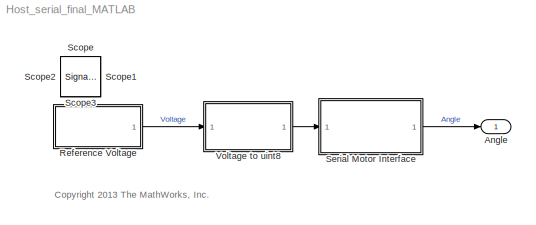
MODEL Host_serial_final_MATLAB
KIND model
CONFIG InitFcn = tstop = str2num(get_param(bdroot,'StopTime'));
CONFIG StopFcn = instrreset
BLOCK [Outport] Angle
  IconDisplay = Port number
  SID = 48
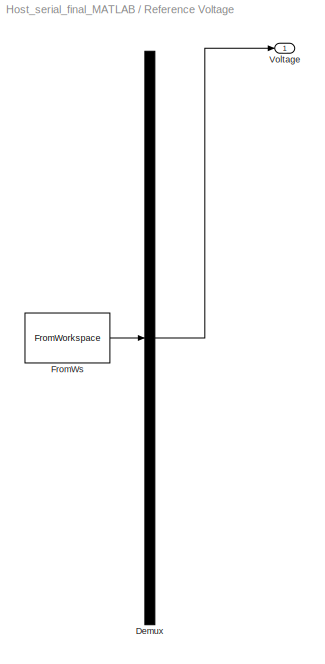
BLOCK [SubSystem] Reference Voltage
  ClipboardFcn = sigbuilder_block('clipboard');
  CloseFcn = sigbuilder_block('close');
  ContinueFcn = sigbuilder_block('continue')
  CopyFcn = sigbuilder_block('copy');
  DeleteFcn = sigbuilder_block('delete');
  FunctionWithSeparateData = off
  LoadFcn = sigbuilder_block('load',[6 4.5 466.5 247.5 ]);
  MaskHideContents = on
  MinAlgLoopOccurrences = off
  ModelCloseFcn = sigbuilder_block('modelClose');
  NameChangeFcn = sigbuilder_block('namechange');
  Opaque = off
  OpenFcn = sigbuilder_block('open',[168.75 307.5 810 456 ]);
  PauseFcn = sigbuilder_block('pause')
  Ports = [0, 1]
  PreSaveFcn = sigbuilder_block('preSave');
  PropExecContextOutsideSubsystem = off
  RTWSystemCode = Auto
  RequestExecContextInheritance = off
  SID = 36
  StartFcn = sigbuilder_block('start');
  StopFcn = sigbuilder_block('stop');
  Tag = STV Subsys
BLOCK [Demux] Reference Voltage/Demux
  Outputs = 1
  Ports = [1, 1]
  SID = 36:1
  Tag = STV Demux
BLOCK [FromWorkspace] Reference Voltage/FromWs
  SID = 36:2
  SampleTime = 1/100
  SigBuilderData = DataTag0
  Tag = STV FromWs
  VariableName = tuvar
  VnvData = DataTag1
  ZeroCross = on
BLOCK [Outport] Reference Voltage/Voltage
  IconDisplay = Port number
  SID = 36:3
  Tag = STV Outport
BLOCK [SignalViewerScope] Scope
  IOType = viewer
  MaxDataPoints = 7500
  NumInputPorts = 2
  Ports = []
  RefreshTime = 0.035000
  SID = 4
  ShowDataMarkers = off
  ShowLegends = off
  TimeRange = 10
  YMax = 3~100
  YMin = -3~-150
BLOCK [SignalViewerScope] Scope1
  IOType = viewer
  LimitDataPoints = off
  MaxDataPoints = 7500
  NumInputPorts = 2
  Ports = []
  RefreshTime = 0.035000
  SID = 49
  SaveName = ScopeData3
  ShowDataMarkers = off
  ShowLegends = on
  TimeRange = 10
  YMax = 5~125
  YMin = -5~-125
  ZoomMode = xonly
BLOCK [SignalViewerScope] Scope2
  IOType = viewer
  MaxDataPoints = 7500
  NumInputPorts = 1
  Ports = []
  RefreshTime = 0.035000
  SID = 17
  SaveName = ScopeData1
  ShowDataMarkers = off
  ShowLegends = off
BLOCK [SignalViewerScope] Scope3
  IOType = viewer
  MaxDataPoints = 7500
  NumInputPorts = 1
  Ports = []
  RefreshTime = 0.035000
  SID = 37
  SaveName = ScopeData2
  ShowDataMarkers = off
  ShowLegends = off
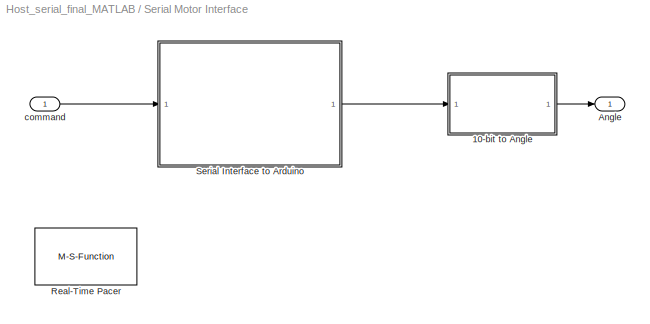
BLOCK [SubSystem] Serial Motor Interface
  FunctionWithSeparateData = off
  MaskHideContents = off
  MinAlgLoopOccurrences = off
  Opaque = off
  Ports = [1, 1]
  PropExecContextOutsideSubsystem = off
  RTWSystemCode = Auto
  RequestExecContextInheritance = off
  SID = 86
  StartFcn = openInstr = instrfind;                           \nif ~isempty(openInstr)                           \n  fclose(openInstr);                             \n  delete(openInstr);                             \nend                                              \nclear openInstr                                  \ns = serial('COM4', 'BaudRate', 9600,'Timeout',5);\nfopen(s);
  StopFcn = fclose(s);\ndelete(s);\nclear s
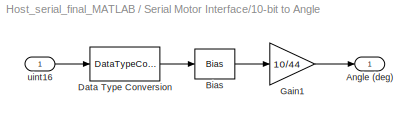
BLOCK [SubSystem] Serial Motor Interface/10-bit to Angle
  FunctionWithSeparateData = off
  MaskHideContents = off
  MinAlgLoopOccurrences = off
  Opaque = off
  Ports = [1, 1]
  PropExecContextOutsideSubsystem = off
  RTWSystemCode = Auto
  RequestExecContextInheritance = off
  SID = 88
BLOCK [Outport] Serial Motor Interface/10-bit to Angle/Angle (deg)
  IconDisplay = Port number
  SID = 93
BLOCK [Bias] Serial Motor Interface/10-bit to Angle/Bias
  Bias = -500
  SID = 90
  SaturateOnIntegerOverflow = off
BLOCK [DataTypeConversion] Serial Motor Interface/10-bit to Angle/Data Type Conversion
  OutDataTypeStr = double
  RndMeth = Floor
  SID = 91
  SaturateOnIntegerOverflow = off
BLOCK [Gain] Serial Motor Interface/10-bit to Angle/Gain1
  Gain = 10/44
  OutDataTypeStr = Inherit: Inherit via internal rule
  ParamDataTypeStr = Inherit: Inherit via internal rule
  SID = 92
  SaturateOnIntegerOverflow = off
BLOCK [Inport] Serial Motor Interface/10-bit to Angle/uint16
  IconDisplay = Port number
  SID = 89
BLOCK [Outport] Serial Motor Interface/Angle
  IconDisplay = Port number
  SID = 96
BLOCK [M-S-Function] Serial Motor Interface/Real-Time Pacer
  FunctionName = msfun_realtime_pacer
  Parameters = simTimePerRealTime
  Ports = []
  SID = 94
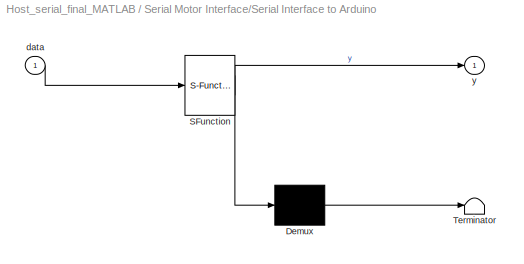
BLOCK [SubSystem] Serial Motor Interface/Serial Interface to Arduino
  ErrorFcn = Stateflow.Translate.translate
  FunctionWithSeparateData = off
  MaskHideContents = off
  MinAlgLoopOccurrences = off
  Opaque = off
  PermitHierarchicalResolution = ExplicitOnly
  Ports = [1, 1]
  PropExecContextOutsideSubsystem = off
  RTWSystemCode = Auto
  RequestExecContextInheritance = off
  SFBlockType = MATLAB Function
  SID = 95
  SystemSampleTime = 1/100
  TreatAsAtomicUnit = on
BLOCK [Demux] Serial Motor Interface/Serial Interface to Arduino/ Demux 
  Outputs = 1
  Ports = [1, 1]
  SID = 95::40
BLOCK [S-Function] Serial Motor Interface/Serial Interface to Arduino/ SFunction 
  EnableBusSupport = off
  FunctionName = sf_sfun
  PortCounts = [1 2]
  Ports = [1, 2]
  SID = 95::39
  Tag = Stateflow S-Function Host_serial_final_MATLAB 2
BLOCK [Terminator] Serial Motor Interface/Serial Interface to Arduino/ Terminator 
  SID = 95::41
BLOCK [Inport] Serial Motor Interface/Serial Interface to Arduino/data
  IconDisplay = Port number
  SID = 95::1
BLOCK [Outport] Serial Motor Interface/Serial Interface to Arduino/y
  IconDisplay = Port number
  SID = 95::5
BLOCK [Inport] Serial Motor Interface/command
  IconDisplay = Port number
  OutDataTypeStr = uint8
  SID = 87
  SampleTime = 0.01
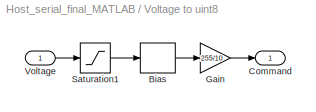
BLOCK [SubSystem] Voltage to uint8
  FunctionWithSeparateData = off
  MaskHideContents = off
  MinAlgLoopOccurrences = off
  Opaque = off
  Ports = [1, 1]
  PropExecContextOutsideSubsystem = off
  RTWSystemCode = Auto
  RequestExecContextInheritance = off
  SID = 38
BLOCK [Bias] Voltage to uint8/Bias
  Bias = 5
  SID = 40
  SaturateOnIntegerOverflow = off
BLOCK [Outport] Voltage to uint8/Command
  IconDisplay = Port number
  SID = 43
BLOCK [Gain] Voltage to uint8/Gain
  Gain = 255/10
  OutDataTypeStr = uint8
  ParamDataTypeStr = Inherit: Inherit via internal rule
  SID = 41
  SaturateOnIntegerOverflow = off
BLOCK [Saturate] Voltage to uint8/Saturation1
  InputPortMap = u0
  LowerLimit = -5
  Ports = [1, 1]
  SID = 42
  UpperLimit = 5
BLOCK [Inport] Voltage to uint8/Voltage
  IconDisplay = Port number
  SID = 39
ANNOTATION (root): <copyright redacted>\n
LINE Reference Voltage/Demux:1 -> Reference Voltage/Voltage:1
LINE Reference Voltage/FromWs:1 -> Reference Voltage/Demux:1
LINE Reference Voltage:1 -> Voltage to uint8:1
LINE Serial Motor Interface/10-bit to Angle/Bias:1 -> Serial Motor Interface/10-bit to Angle/Gain1:1
LINE Serial Motor Interface/10-bit to Angle/Data Type Conversion:1 -> Serial Motor Interface/10-bit to Angle/Bias:1
LINE Serial Motor Interface/10-bit to Angle/Gain1:1 -> Serial Motor Interface/10-bit to Angle/Angle (deg):1
LINE Serial Motor Interface/10-bit to Angle/uint16:1 -> Serial Motor Interface/10-bit to Angle/Data Type Conversion:1
LINE Serial Motor Interface/10-bit to Angle:1 -> Serial Motor Interface/Angle:1
LINE Serial Motor Interface/Serial Interface to Arduino/ Demux :1 -> Serial Motor Interface/Serial Interface to Arduino/ Terminator :1
LINE Serial Motor Interface/Serial Interface to Arduino/ SFunction :1 -> Serial Motor Interface/Serial Interface to Arduino/ Demux :1
LINE Serial Motor Interface/Serial Interface to Arduino/ SFunction :2 -> Serial Motor Interface/Serial Interface to Arduino/y:1
LINE Serial Motor Interface/Serial Interface to Arduino/data:1 -> Serial Motor Interface/Serial Interface to Arduino/ SFunction :1
LINE Serial Motor Interface/Serial Interface to Arduino:1 -> Serial Motor Interface/10-bit to Angle:1
LINE Serial Motor Interface/command:1 -> Serial Motor Interface/Serial Interface to Arduino:1
LINE Serial Motor Interface:1 -> Angle:1
LINE Voltage to uint8/Bias:1 -> Voltage to uint8/Gain:1
LINE Voltage to uint8/Gain:1 -> Voltage to uint8/Command:1
LINE Voltage to uint8/Saturation1:1 -> Voltage to uint8/Bias:1
LINE Voltage to uint8/Voltage:1 -> Voltage to uint8/Saturation1:1
LINE Voltage to uint8:1 -> Serial Motor Interface:1
CHART Serial Motor Interface/Serial Interface to Arduino states=1 transitions=1
  STATE_LABEL 'eML_blk_kernel()'
